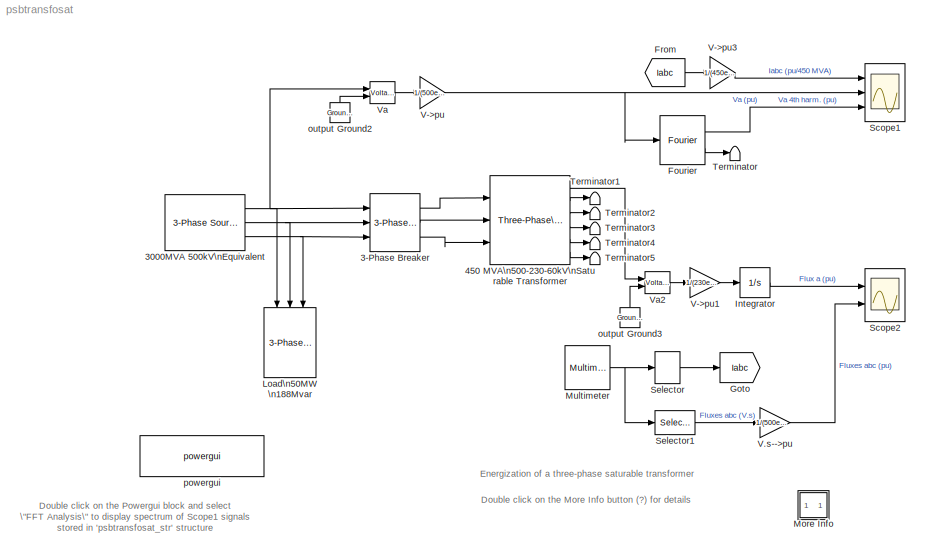
MODEL psbtransfosat
KIND model
CONFIG InitFcn = powericon('psbinitsys',bdroot);
BLOCK [Reference] 3-Phase Breaker  REF=powerlib2/Elements/3-Phase Breaker
  Cp = inf
  Ports = [3, 3]
  Ron = 0.01
  Rp = 100e6
  SourceBlock = powerlib2/Elements/3-Phase Breaker
  SourceType = Three-Phase Breaker
  Ts = 0
  comext = off
  init_states = open
  mesure = Breaker currents
  sa = on
  sb = on
  sc = on
  sw_times = [0.05]
BLOCK [Reference] 3000MVA  500kV\nEquivalent  REF=powerlib2/Electrical\nSources/3-Phase Source
  F = 60
  InternalConnection = Yg
  L = 0.221
  PSBOutputType = 111
  Phi = 0
  Ports = [0, 3]
  Psc = 0
  R = 5.55
  RLoff = off
  SourceBlock = powerlib2/Electrical\nSources/3-Phase Source
  SourceType = 3-Phase Source
  Tag = PoWeRsYsTeMbLoCk
  V = 500e3
  Vbase = 0
  XRratio = 0
BLOCK [Reference] 450 MVA\n500-230-60kV\nSaturable Transformer  REF=powerlib2/Elements/Three-Phase\nTransformer\n(Three Windings)
  PSBOutputType = 1111111
  Ports = [3, 6]
  SourceBlock = powerlib2/Elements/Three-Phase\nTransformer\n(Three Windings)
  SourceType = Three-Phase Transformer (Three Windings)
  Tag = PoWeRsYsTeMbLoCk
  confi = ABC as input terminals
  hyst = off
  ifl = [0.8 -0.4 0.4]
  initialslopes = [+1 +1 +1]
  lm = 500
  matfile = 'hysteresis'
  mesure = Fluxes and magnetization currents ( Imag )
  nom = [ 450e6 , 60 ]
  rmag = 500
  sat = [0 0; 0.0 1.2; 1.0  1.52]
  sif = on
  w1 = [ 500e3 0.002 0.08 ]
  w2 = [ 230e3 0.002 0.08]
  w3 = [ 60e3 0.015 0.30]
  ydw1 = Yg
  ydw2 = Yg
  ydw3 = Delta (D1)
  ynsat = on
BLOCK [Reference] Fourier  REF=powerlib_extras/Measurements/Fourier
  Ports = [1, 2]
  SourceBlock = powerlib_extras/Measurements/Fourier
  SourceType = Fourier analyser
  f1 = 60
  n = 4
BLOCK [From] From
  CloseFcn = tagdialog Close
  DialogController = Simulink.DDGSource
  GotoTag = Iabc
BLOCK [Goto] Goto
  DialogController = Simulink.DDGSource
  GotoTag = Iabc
  TagVisibility = local
BLOCK [Integrator] Integrator
  InitialCondition = 0.8
  Ports = [1, 1]
  ZeroCross = off
BLOCK [Reference] Load\n50MW \n188Mvar  REF=powerlib2/Elements/3-Phase\nParallel RLC Load
  P3 = 50e6
  Ports = [3]
  QC3 = 188e6
  QL3 = 0
  SourceBlock = powerlib2/Elements/3-Phase\nParallel RLC Load
  SourceType = 3-phase parallel RLC load
  Vpp = 500e3
  fn = 60
BLOCK [SubSystem] More Info
  MaskDisplay = disp('?')
  MaskIconFrame = on
  MaskIconOpaque = on
  MaskIconRotate = none
  MaskIconUnits = autoscale
  MinAlgLoopOccurrences = off
  Ports = []
  RTWSystemCode = Auto
  TreatAsAtomicUnit = off
BLOCK [Reference] Multimeter  REF=powerlib2/Measurements/Multimeter
  AxesSetting = [0,0.1,-100,100]
  Display = 0
  Gain = [1 1 1 1 1 1]
  L = 9
  OutputType = Magnitude
  PSBOutputType = 1
  PSBequivalent = 0
  PhasorSimulation = off
  Ports = [0, 1]
  SavedBlockNames = {}
  SourceBlock = powerlib2/Measurements/Multimeter
  SourceType = MultimeterPSB
  Tag = PoWeRsYsTeMmEaSuReMeNt
  sel = [1 2 3 7 8 9]
  yselected = {'Ib: 3-Phase Breaker/Breaker A','Ib: 3-Phase Breaker/Breaker B','Ib: 3-Phase Breaker/Breaker C','Flux_A: 450 MVA 500-230-60kV Saturable Transformer','Flux_B: 450 MVA 500-230-60kV Saturable Transformer','Flux_C: 450 MVA 500-230-60kV Saturable Transformer'};
BLOCK [Scope] Scope1
  DataFormat = StructureWithTime
  LimitDataPoints = off
  NumInputPorts = 3
  Ports = [3]
  SampleInput = on
  SampleTime = 1/60/333
  SaveName = psbtransfosat_str
  SaveToWorkspace = on
  TimeRange = 0.5
  YMax = 3~1.25~0.25
  YMin = -1.5~-1.5~0.05
BLOCK [Scope] Scope2
  DataFormat = Structure
  LimitDataPoints = off
  NumInputPorts = 2
  Ports = [2]
  TimeRange = 0.5
  YMax = 3~3
  YMin = -1~-2
  ZoomMode = yonly
BLOCK [Selector] Selector
  Elements = 1:3
  InputPortWidth = 6
  Ports = [1, 1]
BLOCK [Selector] Selector1
  Elements = 4:6
  InputPortWidth = 6
  Ports = [1, 1]
BLOCK [Terminator] Terminator
BLOCK [Terminator] Terminator1
BLOCK [Terminator] Terminator2
BLOCK [Terminator] Terminator3
BLOCK [Terminator] Terminator4
BLOCK [Terminator] Terminator5
BLOCK [Gain] V->pu
  Gain = 1/(500e3/sqrt(3)*sqrt(2))
BLOCK [Gain] V->pu1
  Gain = 1/(230e3/sqrt(3)*sqrt(2)/2/pi/60)
BLOCK [Gain] V->pu3
  Gain = 1/(450e6/500e3/sqrt(3)*sqrt(2))
BLOCK [Gain] V.s-->pu
  Gain = 1/(500e3/sqrt(3)*sqrt(2)/2/pi/60)
BLOCK [Reference] Va  REF=powerlib2/Measurements/Voltage Measurement
  OutputType = Magnitude
  PSBOutputType = 0
  PSBequivalent = 0
  PhasorSimulation = off
  Ports = [2, 1]
  SourceBlock = powerlib2/Measurements/Voltage Measurement
  SourceType = Voltage Measurement
  Tag = PoWeRsYsTeMmEaSuReMeNt
BLOCK [Reference] Va2  REF=powerlib2/Measurements/Voltage Measurement
  OutputType = Magnitude
  PSBOutputType = 0
  PSBequivalent = 1
  PhasorSimulation = off
  Ports = [2, 1]
  SourceBlock = powerlib2/Measurements/Voltage Measurement
  SourceType = Voltage Measurement
  Tag = PoWeRsYsTeMmEaSuReMeNt
BLOCK [Reference] output Ground2  REF=powerlib2/Connectors/Ground (output)
  PSBOutputType = 1
  Ports = [0, 1]
  SourceBlock = powerlib2/Connectors/Ground (output)
  SourceType = Ground
  Tag = PoWeRsYsTeMbLoCk
BLOCK [Reference] output Ground3  REF=powerlib2/Connectors/Ground (output)
  PSBOutputType = 1
  Ports = [0, 1]
  SourceBlock = powerlib2/Connectors/Ground (output)
  SourceType = Ground
  Tag = PoWeRsYsTeMbLoCk
BLOCK [Reference] powergui  REF=powerlib2/powergui
  DisplayStyle = 1
  Frange = logspace(0,3,50)
  FreqAxis = on
  MaxFrequency = 1000
  Ports = []
  RmsSteady = 1
  SourceBlock = powerlib2/powergui
  SourceType = PSB option menu block
  StartTime = 0.32
  Ts = 0
  Xlog = off
  Ylog = off
  ZoomFFT = on
  cycles = 2
  display = off
  echomessages = off
  frequency = 60
  frequencyindice = 1
  frequencyindicesteady = 1
  fundamental = 60
  methode = off
  save = off
  structure = psbtransfosat_str
  variable = ZData
ANNOTATION (root): Double click on the More Info button (?) for details
ANNOTATION (root): Double click on the Powergui block and select\n \"FFT Analysis\" to display spectrum of Scope1 signals\n stored in 'psbtransfosat_str' structure
ANNOTATION (root): Energization of a three-phase saturable transformer
ANNOTATION More Info: A three-phase transformer is energized on a 500 kV network. The transformer rated 450 MVA, 500 kV/230 kV/60 kV consists of three windings \nconnected in Y/Y/Delta.\n\nThe power system is simulated by an equivalent consisting of an inductive source (short-circuit power of 3000 MVA) and a parallel RC load.\nThe capacitor reactive power has been selected in order to produce a resonance at 240 Hz (4th...<+1150ch>
ANNOTATION More Info: Circuit Description
ANNOTATION More Info: Demonstration
ANNOTATION More Info: G. Sybille (Hydro-Quebec)
ANNOTATION More Info: Start the simulation and observe voltage, current and flux waveforms on Scope1 and Scope2.\n\nObserve the transformer inrush currents and overvoltage after breaker closing. Because of the 0.8 pu residual flux on phase A and breaker \nclosing at an instant causing maximum flux offset, the flux exceeds 2 pu on phase A. Compare the flux in phase A measured by the \nmultimeter (yellow trace on 2nd inp...<+839ch>
ANNOTATION More Info: This demonstration illustrates use of Three-phase, Powergui, and Multimeter\nblocks to study transformer saturation phenomenon
LINE 3-Phase Breaker:1 -> 450 MVA\n500-230-60kV\nSaturable Transformer:1
LINE 3-Phase Breaker:2 -> 450 MVA\n500-230-60kV\nSaturable Transformer:2
LINE 3-Phase Breaker:3 -> 450 MVA\n500-230-60kV\nSaturable Transformer:3
NET 3000MVA  500kV\nEquivalent:1 -> 3-Phase Breaker:1, Load\n50MW \n188Mvar:1, Va:1
NET 3000MVA  500kV\nEquivalent:2 -> 3-Phase Breaker:2, Load\n50MW \n188Mvar:2
NET 3000MVA  500kV\nEquivalent:3 -> 3-Phase Breaker:3, Load\n50MW \n188Mvar:3
LINE 450 MVA\n500-230-60kV\nSaturable Transformer:1 -> Va2:1
LINE 450 MVA\n500-230-60kV\nSaturable Transformer:2 -> Terminator1:1
LINE 450 MVA\n500-230-60kV\nSaturable Transformer:3 -> Terminator2:1
LINE 450 MVA\n500-230-60kV\nSaturable Transformer:4 -> Terminator3:1
LINE 450 MVA\n500-230-60kV\nSaturable Transformer:5 -> Terminator4:1
LINE 450 MVA\n500-230-60kV\nSaturable Transformer:6 -> Terminator5:1
LINE Fourier:1 -> Scope1:3
LINE Fourier:2 -> Terminator:1
LINE From:1 -> V->pu3:1
LINE Integrator:1 -> Scope2:1
NET Multimeter:1 -> Selector1:1, Selector:1
LINE Selector1:1 -> V.s-->pu:1
LINE Selector:1 -> Goto:1
LINE V->pu1:1 -> Integrator:1
LINE V->pu3:1 -> Scope1:1
NET V->pu:1 -> Fourier:1, Scope1:2
LINE V.s-->pu:1 -> Scope2:2
LINE Va2:1 -> V->pu1:1
LINE Va:1 -> V->pu:1
LINE output Ground2:1 -> Va:2
LINE output Ground3:1 -> Va2:2
note: NET lines group one-source signal fan-out (src -> all destinations, sorted); 1:1 wires keep LINE
